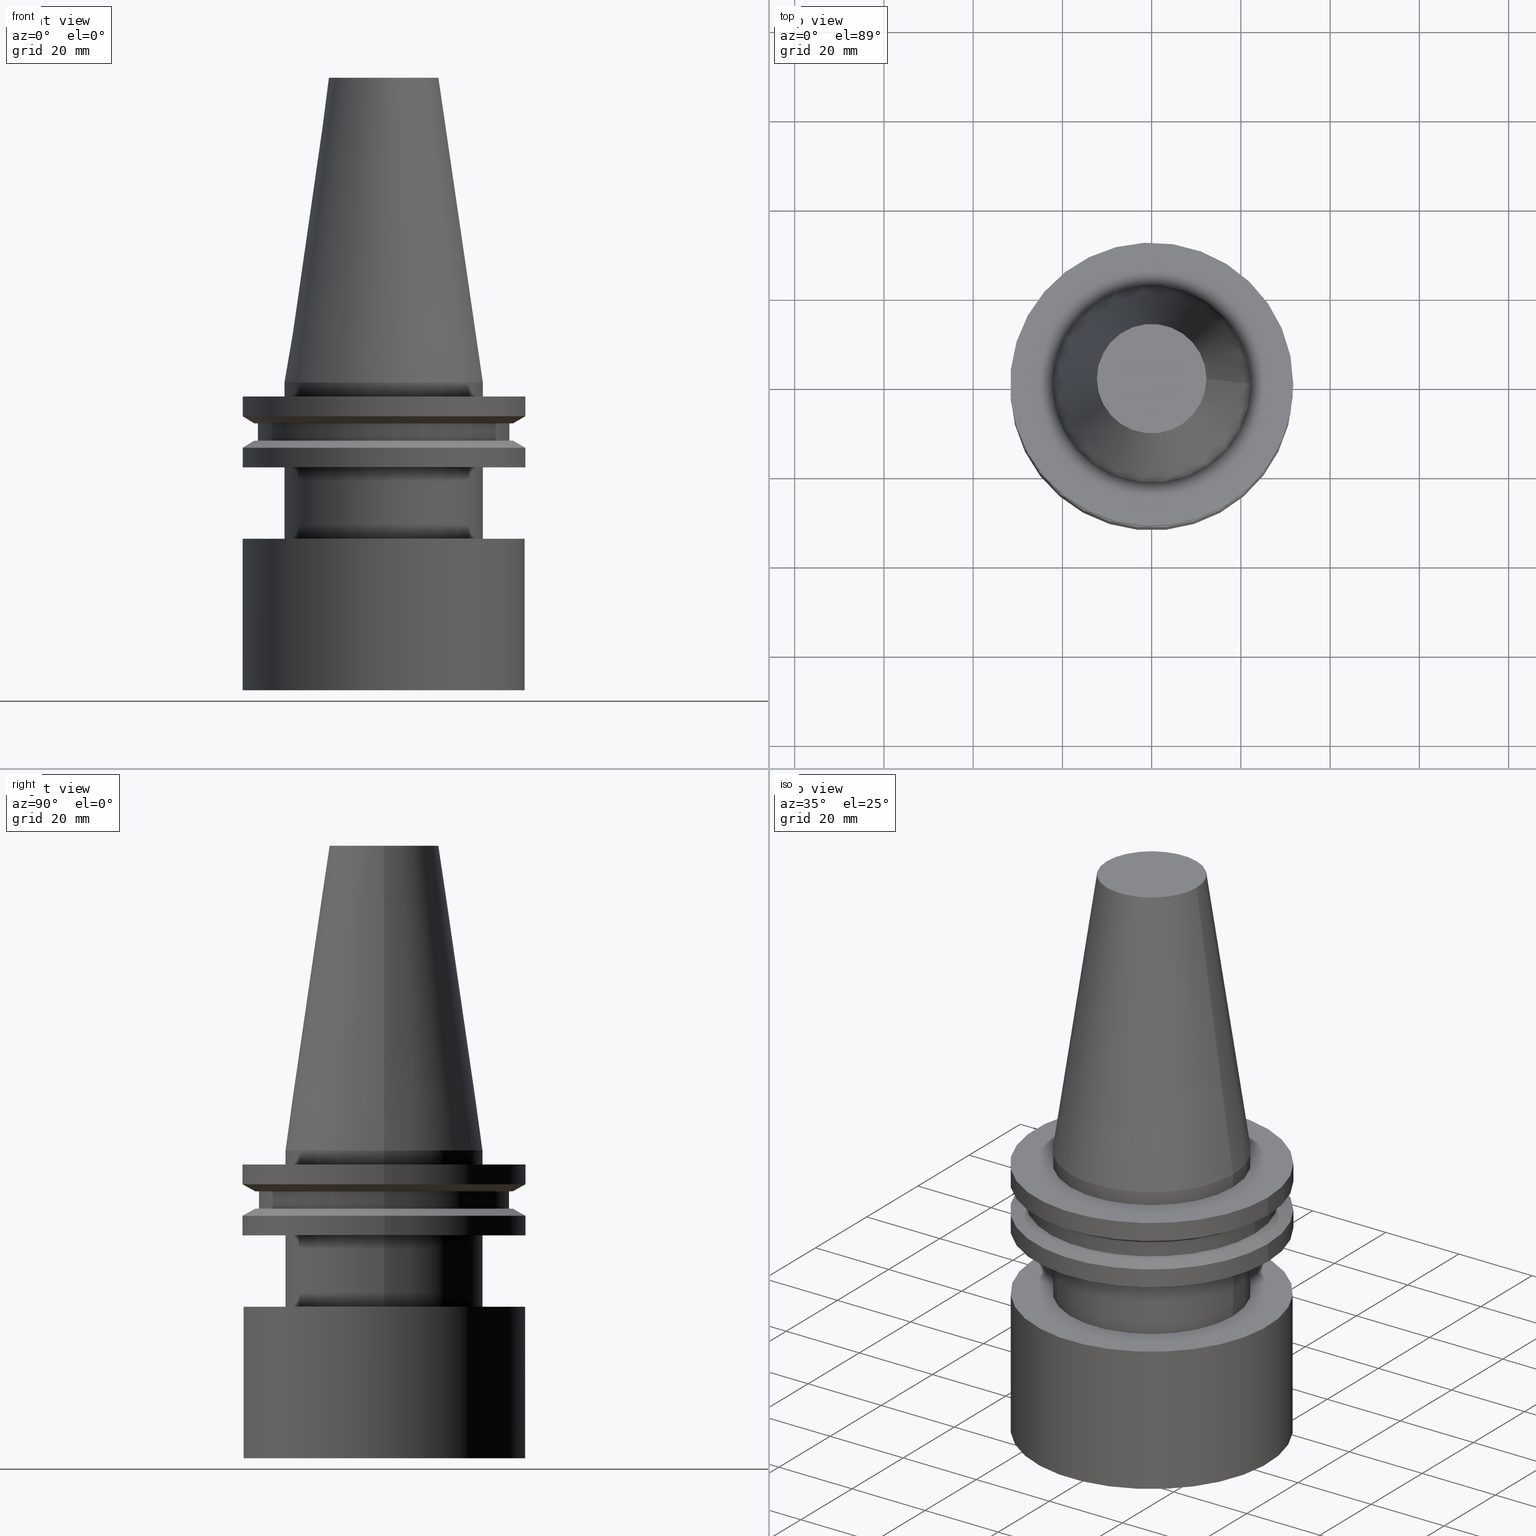
[diagram: canonical four-view strip — front | top / right | iso, engineering-drawing reading convention]
A machine part, canonical four-view strip (front | top / right | iso — engineering-drawing reading convention). The complete STEP part file that produces these views, byte-faithful:
ISO-10303-21;
HEADER;
FILE_DESCRIPTION (( 'STEP AP203' ),
    '1' );
FILE_NAME ('11.368.462N.stp',
    '2022-03-09T15:13:51',
    ( '' ),
    ( '' ),
    'SwSTEP 2.0',
    'SolidWorks 2021',
    '' );
FILE_SCHEMA (( 'CONFIG_CONTROL_DESIGN' ));
ENDSEC;

DATA;
#1 = CARTESIAN_POINT ( 'NONE',  ( 0.000000000000000000, 0.000000000000000000, -3.174999999999997158 ) ) ;
#2 = ORIENTED_EDGE ( 'NONE', *, *, #102, .T. ) ;
#3 = VERTEX_POINT ( 'NONE', #242 ) ;
#4 = ADVANCED_FACE ( 'NONE', ( #222, #254 ), #198, .T. ) ;
#5 = CARTESIAN_POINT ( 'NONE',  ( 0.000000000000000000, 0.000000000000000000, 68.25000000000000000 ) ) ;
#6 = EDGE_LOOP ( 'NONE', ( #2 ) ) ;
#7 = CARTESIAN_POINT ( 'NONE',  ( 31.75000000000000000, 0.000000000000000000, -3.174999999999997158 ) ) ;
#8 = FACE_BOUND ( 'NONE', #93, .T. ) ;
#9 = EDGE_LOOP ( 'NONE', ( #303 ) ) ;
#10 = ADVANCED_BREP_SHAPE_REPRESENTATION ( '11.368.462N', ( #324, #362 ), #279 ) ;
#11 = AXIS2_PLACEMENT_3D ( 'NONE', #392, #210, #360 ) ;
#12 = LOCAL_TIME ( 9, 13, 51.00000000000000000, #344 ) ;
#13 = ORIENTED_EDGE ( 'NONE', *, *, #270, .F. ) ;
#14 = VERTEX_POINT ( 'NONE', #273 ) ;
#15 = ADVANCED_FACE ( 'NONE', ( #256, #55 ), #18, .T. ) ;
#16 = ORIENTED_EDGE ( 'NONE', *, *, #313, .F. ) ;
#17 = VERTEX_POINT ( 'NONE', #250 ) ;
#18 = CYLINDRICAL_SURFACE ( 'NONE', #204, 31.75000000000000000 ) ;
#19 = PERSON_AND_ORGANIZATION_ROLE ( 'creator' ) ;
#20 = DIRECTION ( 'NONE',  ( -0.000000000000000000, -0.000000000000000000, 1.000000000000000000 ) ) ;
#21 = CALENDAR_DATE ( 2022, 9, 3 ) ;
#22 = EDGE_CURVE ( 'NONE', #123, #123, #208, .T. ) ;
#23 = PERSON_AND_ORGANIZATION_ROLE ( 'creator' ) ;
#24 = CALENDAR_DATE ( 2022, 9, 3 ) ;
#25 = AXIS2_PLACEMENT_3D ( 'NONE', #75, #20, #137 ) ;
#26 = CIRCLE ( 'NONE', #35, 31.63500000000000867 ) ;
#27 = LOCAL_TIME ( 9, 13, 51.00000000000000000, #114 ) ;
#28 = PLANE ( 'NONE',  #64 ) ;
#29 = CC_DESIGN_PERSON_AND_ORGANIZATION_ASSIGNMENT ( #281, #53, ( #153 ) ) ;
#30 = DIRECTION ( 'NONE',  ( -1.000000000000000000, 0.000000000000000000, -0.000000000000000000 ) ) ;
#31 = APPLICATION_CONTEXT ( 'configuration controlled 3d designs of mechanical parts and assemblies' ) ;
#32 = DIRECTION ( 'NONE',  ( -0.000000000000000000, -0.000000000000000000, 1.000000000000000000 ) ) ;
#33 = AXIS2_PLACEMENT_3D ( 'NONE', #311, #103, #132 ) ;
#34 = FACE_OUTER_BOUND ( 'NONE', #122, .T. ) ;
#35 = AXIS2_PLACEMENT_3D ( 'NONE', #219, #95, #215 ) ;
#36 = DIRECTION ( 'NONE',  ( -0.000000000000000000, -0.000000000000000000, 1.000000000000000000 ) ) ;
#37 = CARTESIAN_POINT ( 'NONE',  ( 0.000000000000000000, 1.540743955509788682E-30, -35.04999999999999005 ) ) ;
#38 = EDGE_LOOP ( 'NONE', ( #13 ) ) ;
#39 = DIRECTION ( 'NONE',  ( 1.000000000000000000, 0.000000000000000000, 0.000000000000000000 ) ) ;
#40 = CIRCLE ( 'NONE', #33, 28.17999999999999972 ) ;
#41 = ORIENTED_EDGE ( 'NONE', *, *, #116, .F. ) ;
#42 = EDGE_CURVE ( 'NONE', #131, #131, #40, .T. ) ;
#43 = DIRECTION ( 'NONE',  ( 1.000000000000000000, 0.000000000000000000, 0.000000000000000000 ) ) ;
#44 = ORIENTED_EDGE ( 'NONE', *, *, #386, .F. ) ;
#45 = CARTESIAN_POINT ( 'NONE',  ( 28.17999999999999972, 0.000000000000000000, -9.204999999999991189 ) ) ;
#46 = FACE_OUTER_BOUND ( 'NONE', #280, .T. ) ;
#47 = EDGE_LOOP ( 'NONE', ( #74 ) ) ;
#48 = FACE_OUTER_BOUND ( 'NONE', #6, .T. ) ;
#49 = CARTESIAN_POINT ( 'NONE',  ( 28.97919780457007732, 0.000000000000000000, -9.205000000000005400 ) ) ;
#50 = AXIS2_PLACEMENT_3D ( 'NONE', #382, #293, #232 ) ;
#51 = DATE_TIME_ROLE ( 'creation_date' ) ;
#52 =( NAMED_UNIT ( * ) SI_UNIT ( $, .STERADIAN. ) SOLID_ANGLE_UNIT ( ) );
#53 = PERSON_AND_ORGANIZATION_ROLE ( 'classification_officer' ) ;
#54 = PRODUCT_DEFINITION_SHAPE ( 'NONE', 'NONE',  #145 ) ;
#55 = FACE_OUTER_BOUND ( 'NONE', #9, .T. ) ;
#56 = VERTEX_POINT ( 'NONE', #138 ) ;
#57 = CC_DESIGN_PERSON_AND_ORGANIZATION_ASSIGNMENT ( #257, #19, ( #163 ) ) ;
#58 = COORDINATED_UNIVERSAL_TIME_OFFSET ( 6, 0, .BEHIND. ) ;
#59 = AXIS2_PLACEMENT_3D ( 'NONE', #206, #107, #265 ) ;
#60 = DIRECTION ( 'NONE',  ( 1.000000000000000000, 0.000000000000000000, 0.000000000000000000 ) ) ;
#61 = FACE_BOUND ( 'NONE', #328, .T. ) ;
#62 = CALENDAR_DATE ( 2022, 9, 3 ) ;
#63 = EDGE_CURVE ( 'NONE', #185, #185, #136, .T. ) ;
#64 = AXIS2_PLACEMENT_3D ( 'NONE', #88, #111, #233 ) ;
#65 = FACE_OUTER_BOUND ( 'NONE', #38, .T. ) ;
#66 = EDGE_LOOP ( 'NONE', ( #364 ) ) ;
#67 = ORIENTED_EDGE ( 'NONE', *, *, #42, .T. ) ;
#68 = CARTESIAN_POINT ( 'NONE',  ( 28.97919780457008088, 0.000000000000000000, -13.05499999999999794 ) ) ;
#69 = DIRECTION ( 'NONE',  ( 1.000000000000000000, 0.000000000000000000, 0.000000000000000000 ) ) ;
#70 = ORIENTED_EDGE ( 'NONE', *, *, #202, .F. ) ;
#71 = CARTESIAN_POINT ( 'NONE',  ( 0.000000000000000000, 1.127050637003671691E-30, -35.04999999999999005 ) ) ;
#72 = ORIENTED_EDGE ( 'NONE', *, *, #116, .T. ) ;
#73 = FACE_OUTER_BOUND ( 'NONE', #214, .T. ) ;
#74 = ORIENTED_EDGE ( 'NONE', *, *, #202, .T. ) ;
#75 = CARTESIAN_POINT ( 'NONE',  ( 0.000000000000000000, 0.000000000000000000, -3.174999999999997158 ) ) ;
#76 = AXIS2_PLACEMENT_3D ( 'NONE', #213, #183, #43 ) ;
#77 = CC_DESIGN_PERSON_AND_ORGANIZATION_ASSIGNMENT ( #282, #23, ( #145 ) ) ;
#78 = COORDINATED_UNIVERSAL_TIME_OFFSET ( 6, 0, .BEHIND. ) ;
#79 = CIRCLE ( 'NONE', #245, 28.97919780457008088 ) ;
#80 = PERSON ( 'UNSPECIFIED', 'UNSPECIFIED', 'UNSPECIFIED', ('UNSPECIFIED'), ('UNSPECIFIED'), ('UNSPECIFIED') ) ;
#81 = CARTESIAN_POINT ( 'NONE',  ( 12.27178102086201150, 0.000000000000000000, 68.25000000000000000 ) ) ;
#82 = CC_DESIGN_PERSON_AND_ORGANIZATION_ASSIGNMENT ( #251, #253, ( #163 ) ) ;
#83 = FACE_OUTER_BOUND ( 'NONE', #125, .T. ) ;
#84 = AXIS2_PLACEMENT_3D ( 'NONE', #263, #36, #60 ) ;
#85 = CARTESIAN_POINT ( 'NONE',  ( 0.000000000000000000, 0.000000000000000000, -14.65472339340266572 ) ) ;
#86 = CYLINDRICAL_SURFACE ( 'NONE', #229, 22.22500000000000142 ) ;
#87 = APPROVAL_DATE_TIME ( #109, #170 ) ;
#88 = CARTESIAN_POINT ( 'NONE',  ( 0.000000000000000000, 12.27178102086201150, 68.25000000000000000 ) ) ;
#89 = AXIS2_PLACEMENT_3D ( 'NONE', #178, #241, #304 ) ;
#90 = FACE_OUTER_BOUND ( 'NONE', #184, .T. ) ;
#91 = EDGE_CURVE ( 'NONE', #365, #365, #353, .T. ) ;
#92 = CARTESIAN_POINT ( 'NONE',  ( 0.000000000000000000, 0.000000000000000000, -19.04999999999999716 ) ) ;
#93 = EDGE_LOOP ( 'NONE', ( #151 ) ) ;
#94 = VERTEX_POINT ( 'NONE', #369 ) ;
#95 = DIRECTION ( 'NONE',  ( -0.000000000000000000, -2.669333229363891004E-16, -1.000000000000000000 ) ) ;
#96 = DIRECTION ( 'NONE',  ( -0.000000000000000000, -0.000000000000000000, 1.000000000000000000 ) ) ;
#97 = EDGE_LOOP ( 'NONE', ( #307 ) ) ;
#98 = DIRECTION ( 'NONE',  ( 0.000000000000000000, -1.000000000000000000, 2.669333229363891004E-16 ) ) ;
#99 = EDGE_LOOP ( 'NONE', ( #368 ) ) ;
#100 = CC_DESIGN_DATE_AND_TIME_ASSIGNMENT ( #361, #264, ( #153 ) ) ;
#101 = VERTEX_POINT ( 'NONE', #81 ) ;
#102 = EDGE_CURVE ( 'NONE', #94, #94, #175, .T. ) ;
#103 = DIRECTION ( 'NONE',  ( -0.000000000000000000, -0.000000000000000000, 1.000000000000000000 ) ) ;
#104 = PRODUCT ( '11.368.462N', '11.368.462N', '', ( #133 ) ) ;
#105 = APPLICATION_PROTOCOL_DEFINITION ( 'international standard', 'config_control_design', 1994, #187 ) ;
#106 = CARTESIAN_POINT ( 'NONE',  ( 0.000000000000000000, 31.63500000000000512, -69.00000000000000000 ) ) ;
#107 = DIRECTION ( 'NONE',  ( -0.000000000000000000, -0.000000000000000000, 1.000000000000000000 ) ) ;
#108 = DIRECTION ( 'NONE',  ( 1.000000000000000000, 0.000000000000000000, 0.000000000000000000 ) ) ;
#109 = DATE_AND_TIME ( #62, #27 ) ;
#110 = AXIS2_PLACEMENT_3D ( 'NONE', #146, #262, #291 ) ;
#111 = DIRECTION ( 'NONE',  ( 0.000000000000000000, 0.000000000000000000, -1.000000000000000000 ) ) ;
#112 = CC_DESIGN_PERSON_AND_ORGANIZATION_ASSIGNMENT ( #166, #288, ( #104 ) ) ;
#113 = PLANE ( 'NONE',  #390 ) ;
#114 = COORDINATED_UNIVERSAL_TIME_OFFSET ( 6, 0, .BEHIND. ) ;
#115 = DIRECTION ( 'NONE',  ( -0.000000000000000000, -0.000000000000000000, 1.000000000000000000 ) ) ;
#116 = EDGE_CURVE ( 'NONE', #278, #278, #79, .T. ) ;
#117 = AXIS2_PLACEMENT_3D ( 'NONE', #5, #96, #39 ) ;
#118 = DIRECTION ( 'NONE',  ( 0.000000000000000000, -0.000000000000000000, 1.000000000000000000 ) ) ;
#119 = CC_DESIGN_APPROVAL ( #231, ( #145 ) ) ;
#120 = ORIENTED_EDGE ( 'NONE', *, *, #300, .F. ) ;
#121 = FACE_OUTER_BOUND ( 'NONE', #277, .T. ) ;
#122 = EDGE_LOOP ( 'NONE', ( #161 ) ) ;
#123 = VERTEX_POINT ( 'NONE', #7 ) ;
#124 = DIRECTION ( 'NONE',  ( 1.000000000000000000, 0.000000000000000000, 0.000000000000000000 ) ) ;
#125 = EDGE_LOOP ( 'NONE', ( #72 ) ) ;
#126 = DIRECTION ( 'NONE',  ( 0.000000000000000000, -0.000000000000000000, 1.000000000000000000 ) ) ;
#127 = ADVANCED_FACE ( 'NONE', ( #294, #83 ), #352, .F. ) ;
#128 = AXIS2_PLACEMENT_3D ( 'NONE', #71, #190, #98 ) ;
#129 = ORIENTED_EDGE ( 'NONE', *, *, #313, .T. ) ;
#130 = EDGE_LOOP ( 'NONE', ( #269 ) ) ;
#131 = VERTEX_POINT ( 'NONE', #191 ) ;
#132 = DIRECTION ( 'NONE',  ( 1.000000000000000000, 0.000000000000000000, 0.000000000000000000 ) ) ;
#133 = MECHANICAL_CONTEXT ( 'NONE', #31, 'mechanical' ) ;
#134 = ADVANCED_FACE ( 'NONE', ( #34, #318 ), #297, .T. ) ;
#135 = DIRECTION ( 'NONE',  ( -0.000000000000000000, -0.000000000000000000, 1.000000000000000000 ) ) ;
#136 = CIRCLE ( 'NONE', #284, 31.75000000000000000 ) ;
#137 = DIRECTION ( 'NONE',  ( 1.000000000000000000, 0.000000000000000000, 0.000000000000000000 ) ) ;
#138 = CARTESIAN_POINT ( 'NONE',  ( 31.74999999999999289, 0.000000000000000000, -19.04999999999999716 ) ) ;
#139 = DATE_AND_TIME ( #24, #348 ) ;
#140 = CLOSED_SHELL ( 'NONE', ( #4, #186, #343, #355, #15, #192, #127, #252, #326, #134, #235, #227, #157, #295, #260, #336 ) ) ;
#141 = CIRCLE ( 'NONE', #223, 31.74999999999999289 ) ;
#142 = CARTESIAN_POINT ( 'NONE',  ( 0.000000000000000000, 0.000000000000000000, -14.65472339340266572 ) ) ;
#143 = DIRECTION ( 'NONE',  ( -1.000000000000000000, 0.000000000000000000, -0.000000000000000000 ) ) ;
#144 = CALENDAR_DATE ( 2022, 9, 3 ) ;
#145 = PRODUCT_DEFINITION ( 'UNKNOWN', '', #163, #289 ) ;
#146 = CARTESIAN_POINT ( 'NONE',  ( 0.000000000000000000, 0.000000000000000000, -9.205000000000005400 ) ) ;
#147 = CIRCLE ( 'NONE', #258, 22.22500000000000142 ) ;
#148 = ORGANIZATION ( 'UNSPECIFIED', 'UNSPECIFIED', '' ) ;
#149 = FACE_OUTER_BOUND ( 'NONE', #301, .T. ) ;
#150 = FACE_BOUND ( 'NONE', #66, .T. ) ;
#151 = ORIENTED_EDGE ( 'NONE', *, *, #102, .F. ) ;
#152 = DIRECTION ( 'NONE',  ( 1.000000000000000000, 0.000000000000000000, 0.000000000000000000 ) ) ;
#153 = SECURITY_CLASSIFICATION ( '', '', #319 ) ;
#154 = PLANE ( 'NONE',  #172 ) ;
#155 = ORIENTED_EDGE ( 'NONE', *, *, #42, .F. ) ;
#156 = CARTESIAN_POINT ( 'NONE',  ( 22.22500000000000142, 0.000000000000000000, -19.04999999999999716 ) ) ;
#157 = ADVANCED_FACE ( 'NONE', ( #174, #261 ), #86, .T. ) ;
#158 = DIRECTION ( 'NONE',  ( 0.000000000000000000, 1.000000000000000000, -4.386846153884764444E-16 ) ) ;
#159 = ORIENTED_EDGE ( 'NONE', *, *, #200, .T. ) ;
#160 = AXIS2_PLACEMENT_3D ( 'NONE', #142, #384, #323 ) ;
#161 = ORIENTED_EDGE ( 'NONE', *, *, #63, .F. ) ;
#162 = VERTEX_POINT ( 'NONE', #156 ) ;
#163 = PRODUCT_DEFINITION_FORMATION_WITH_SPECIFIED_SOURCE ( 'ANY', '', #104, .NOT_KNOWN. ) ;
#164 = PRODUCT_RELATED_PRODUCT_CATEGORY ( 'detail', '', ( #104 ) ) ;
#165 = APPROVAL_DATE_TIME ( #196, #380 ) ;
#166 = PERSON_AND_ORGANIZATION ( #80, #148 ) ;
#167 = AXIS2_PLACEMENT_3D ( 'NONE', #296, #177, #143 ) ;
#168 = CIRCLE ( 'NONE', #59, 28.97919780457007732 ) ;
#169 = COORDINATED_UNIVERSAL_TIME_OFFSET ( 6, 0, .BEHIND. ) ;
#170 = APPROVAL ( #203, 'UNSPECIFIED' ) ;
#171 = DIRECTION ( 'NONE',  ( 1.000000000000000000, 0.000000000000000000, 0.000000000000000000 ) ) ;
#172 = AXIS2_PLACEMENT_3D ( 'NONE', #274, #126, #124 ) ;
#173 = APPROVAL_PERSON_ORGANIZATION ( #314, #380, #315 ) ;
#174 = FACE_OUTER_BOUND ( 'NONE', #305, .T. ) ;
#175 = CIRCLE ( 'NONE', #347, 22.22499999999999787 ) ;
#176 = AXIS2_PLACEMENT_3D ( 'NONE', #246, #337, #308 ) ;
#177 = DIRECTION ( 'NONE',  ( 0.000000000000000000, 0.000000000000000000, -1.000000000000000000 ) ) ;
#178 = CARTESIAN_POINT ( 'NONE',  ( 0.000000000000000000, 0.000000000000000000, 68.25000000000000000 ) ) ;
#179 = ORIENTED_EDGE ( 'NONE', *, *, #63, .T. ) ;
#180 = FACE_OUTER_BOUND ( 'NONE', #130, .T. ) ;
#181 = ORIENTED_EDGE ( 'NONE', *, *, #300, .T. ) ;
#182 = AXIS2_PLACEMENT_3D ( 'NONE', #85, #205, #357 ) ;
#183 = DIRECTION ( 'NONE',  ( -0.000000000000000000, -0.000000000000000000, 1.000000000000000000 ) ) ;
#184 = EDGE_LOOP ( 'NONE', ( #44 ) ) ;
#185 = VERTEX_POINT ( 'NONE', #218 ) ;
#186 = ADVANCED_FACE ( 'NONE', ( #350 ), #28, .F. ) ;
#187 = APPLICATION_CONTEXT ( 'configuration controlled 3d designs of mechanical parts and assemblies' ) ;
#188 = CARTESIAN_POINT ( 'NONE',  ( 0.000000000000000000, 0.000000000000000000, 68.25000000000000000 ) ) ;
#189 = ORIENTED_EDGE ( 'NONE', *, *, #91, .T. ) ;
#190 = DIRECTION ( 'NONE',  ( 0.000000000000000000, 2.669333229363891004E-16, 1.000000000000000000 ) ) ;
#191 = CARTESIAN_POINT ( 'NONE',  ( 28.17999999999999972, 0.000000000000000000, -13.05499999999999794 ) ) ;
#192 = ADVANCED_FACE ( 'NONE', ( #61, #149 ), #388, .T. ) ;
#193 = AXIS2_PLACEMENT_3D ( 'NONE', #188, #115, #69 ) ;
#194 = CC_DESIGN_SECURITY_CLASSIFICATION ( #153, ( #163 ) ) ;
#195 = DIRECTION ( 'NONE',  ( -1.000000000000000000, 0.000000000000000000, 0.000000000000000000 ) ) ;
#196 = DATE_AND_TIME ( #21, #12 ) ;
#197 = DIRECTION ( 'NONE',  ( 1.000000000000000000, 0.000000000000000000, 0.000000000000000000 ) ) ;
#198 = CONICAL_SURFACE ( 'NONE', #340, 22.22500000000000142, 0.1448138465474119174 ) ;
#199 = AXIS2_PLACEMENT_3D ( 'NONE', #37, #276, #271 ) ;
#200 = EDGE_CURVE ( 'NONE', #220, #220, #333, .T. ) ;
#201 = PERSON_AND_ORGANIZATION ( #80, #148 ) ;
#202 = EDGE_CURVE ( 'NONE', #332, #332, #168, .T. ) ;
#203 = APPROVAL_STATUS ( 'not_yet_approved' ) ;
#204 = AXIS2_PLACEMENT_3D ( 'NONE', #375, #135, #197 ) ;
#205 = DIRECTION ( 'NONE',  ( -0.000000000000000000, -0.000000000000000000, 1.000000000000000000 ) ) ;
#206 = CARTESIAN_POINT ( 'NONE',  ( 0.000000000000000000, 0.000000000000000000, -9.205000000000005400 ) ) ;
#207 = CARTESIAN_POINT ( 'NONE',  ( 0.000000000000000000, 31.75000000000000000, -3.174999999999999378 ) ) ;
#208 = CIRCLE ( 'NONE', #25, 31.75000000000000000 ) ;
#209 = APPROVAL_PERSON_ORGANIZATION ( #201, #231, #226 ) ;
#210 = DIRECTION ( 'NONE',  ( -0.000000000000000000, -0.000000000000000000, 1.000000000000000000 ) ) ;
#211 = PERSON_AND_ORGANIZATION ( #80, #148 ) ;
#212 = EDGE_LOOP ( 'NONE', ( #70 ) ) ;
#213 = CARTESIAN_POINT ( 'NONE',  ( 0.000000000000000000, 0.000000000000000000, 0.000000000000000000 ) ) ;
#214 = EDGE_LOOP ( 'NONE', ( #373 ) ) ;
#215 = DIRECTION ( 'NONE',  ( 0.000000000000000000, 1.000000000000000000, -4.386846153884764444E-16 ) ) ;
#216 = EDGE_CURVE ( 'NONE', #162, #162, #259, .T. ) ;
#217 = ORIENTED_EDGE ( 'NONE', *, *, #22, .T. ) ;
#218 = CARTESIAN_POINT ( 'NONE',  ( 31.75000000000000000, 0.000000000000000000, -7.605276606597335842 ) ) ;
#219 = CARTESIAN_POINT ( 'NONE',  ( 0.000000000000000000, -9.062386313690410430E-15, -68.99999999999998579 ) ) ;
#220 = VERTEX_POINT ( 'NONE', #45 ) ;
#221 = PLANE ( 'NONE',  #176 ) ;
#222 = FACE_BOUND ( 'NONE', #387, .T. ) ;
#223 = AXIS2_PLACEMENT_3D ( 'NONE', #92, #376, #285 ) ;
#224 = DIRECTION ( 'NONE',  ( 0.000000000000000000, 0.000000000000000000, 1.000000000000000000 ) ) ;
#225 = CARTESIAN_POINT ( 'NONE',  ( 0.000000000000000000, 0.000000000000000000, -7.605276606597335842 ) ) ;
#226 = APPROVAL_ROLE ( '' ) ;
#227 = ADVANCED_FACE ( 'NONE', ( #354, #391 ), #113, .F. ) ;
#228 = DIRECTION ( 'NONE',  ( 0.000000000000000000, 0.000000000000000000, -1.000000000000000000 ) ) ;
#229 = AXIS2_PLACEMENT_3D ( 'NONE', #230, #32, #298 ) ;
#230 = CARTESIAN_POINT ( 'NONE',  ( 0.000000000000000000, 0.000000000000000000, 68.25000000000000000 ) ) ;
#231 = APPROVAL ( #378, 'UNSPECIFIED' ) ;
#232 = DIRECTION ( 'NONE',  ( 1.000000000000000000, 0.000000000000000000, 0.000000000000000000 ) ) ;
#233 = DIRECTION ( 'NONE',  ( -1.000000000000000000, 0.000000000000000000, -0.000000000000000000 ) ) ;
#234 = CARTESIAN_POINT ( 'NONE',  ( 0.000000000000000000, 0.000000000000000000, -13.05499999999999794 ) ) ;
#235 = ADVANCED_FACE ( 'NONE', ( #327, #306 ), #334, .T. ) ;
#236 = CYLINDRICAL_SURFACE ( 'NONE', #11, 22.22500000000000142 ) ;
#237 = CIRCLE ( 'NONE', #193, 12.27178102086201150 ) ;
#238 = APPROVAL_PERSON_ORGANIZATION ( #211, #170, #358 ) ;
#239 = FACE_BOUND ( 'NONE', #316, .T. ) ;
#240 = EDGE_LOOP ( 'NONE', ( #181 ) ) ;
#241 = DIRECTION ( 'NONE',  ( -0.000000000000000000, -0.000000000000000000, 1.000000000000000000 ) ) ;
#242 = CARTESIAN_POINT ( 'NONE',  ( 0.000000000000000000, 31.63500000000000512, -35.04999999999999716 ) ) ;
#243 = FACE_OUTER_BOUND ( 'NONE', #97, .T. ) ;
#244 = EDGE_LOOP ( 'NONE', ( #217 ) ) ;
#245 = AXIS2_PLACEMENT_3D ( 'NONE', #234, #389, #321 ) ;
#246 = CARTESIAN_POINT ( 'NONE',  ( 0.000000000000000000, 31.63500000000000512, -69.00000000000000000 ) ) ;
#247 = LOCAL_TIME ( 9, 13, 51.00000000000000000, #78 ) ;
#248 = ORIENTED_EDGE ( 'NONE', *, *, #270, .T. ) ;
#249 = EDGE_LOOP ( 'NONE', ( #275 ) ) ;
#250 = CARTESIAN_POINT ( 'NONE',  ( 22.22500000000000142, 0.000000000000000000, 0.000000000000000000 ) ) ;
#251 = PERSON_AND_ORGANIZATION ( #80, #148 ) ;
#252 = ADVANCED_FACE ( 'NONE', ( #180, #121 ), #329, .T. ) ;
#253 = PERSON_AND_ORGANIZATION_ROLE ( 'design_supplier' ) ;
#254 = FACE_OUTER_BOUND ( 'NONE', #372, .T. ) ;
#255 = CALENDAR_DATE ( 2022, 9, 3 ) ;
#256 = FACE_OUTER_BOUND ( 'NONE', #356, .T. ) ;
#257 = PERSON_AND_ORGANIZATION ( #80, #148 ) ;
#258 = AXIS2_PLACEMENT_3D ( 'NONE', #1, #267, #152 ) ;
#259 = CIRCLE ( 'NONE', #50, 22.22500000000000142 ) ;
#260 = ADVANCED_FACE ( 'NONE', ( #46, #367 ), #302, .T. ) ;
#261 = FACE_OUTER_BOUND ( 'NONE', #335, .T. ) ;
#262 = DIRECTION ( 'NONE',  ( -0.000000000000000000, -0.000000000000000000, 1.000000000000000000 ) ) ;
#263 = CARTESIAN_POINT ( 'NONE',  ( 0.000000000000000000, 0.000000000000000000, -9.204999999999991189 ) ) ;
#264 = DATE_TIME_ROLE ( 'classification_date' ) ;
#265 = DIRECTION ( 'NONE',  ( 1.000000000000000000, 0.000000000000000000, 0.000000000000000000 ) ) ;
#266 = EDGE_CURVE ( 'NONE', #14, #14, #147, .T. ) ;
#267 = DIRECTION ( 'NONE',  ( -0.000000000000000000, -0.000000000000000000, 1.000000000000000000 ) ) ;
#268 = PLANE ( 'NONE',  #310 ) ;
#269 = ORIENTED_EDGE ( 'NONE', *, *, #200, .F. ) ;
#270 = EDGE_CURVE ( 'NONE', #3, #3, #370, .T. ) ;
#271 = DIRECTION ( 'NONE',  ( 0.000000000000000000, 1.000000000000000000, -2.193423076942382468E-16 ) ) ;
#272 = ORIENTED_EDGE ( 'NONE', *, *, #266, .T. ) ;
#273 = CARTESIAN_POINT ( 'NONE',  ( 22.22500000000000142, 0.000000000000000000, -3.174999999999997158 ) ) ;
#274 = CARTESIAN_POINT ( 'NONE',  ( 0.000000000000000000, 28.97919780457007732, -9.204999999999996518 ) ) ;
#275 = ORIENTED_EDGE ( 'NONE', *, *, #283, .F. ) ;
#276 = DIRECTION ( 'NONE',  ( -0.000000000000000000, -2.669333229363891004E-16, -1.000000000000000000 ) ) ;
#277 = EDGE_LOOP ( 'NONE', ( #67 ) ) ;
#278 = VERTEX_POINT ( 'NONE', #68 ) ;
#279 =( GEOMETRIC_REPRESENTATION_CONTEXT ( 3 ) GLOBAL_UNCERTAINTY_ASSIGNED_CONTEXT ( ( #374 ) ) GLOBAL_UNIT_ASSIGNED_CONTEXT ( ( #377, #345, #52 ) ) REPRESENTATION_CONTEXT ( 'NONE', 'WORKASPACE' ) );
#280 = EDGE_LOOP ( 'NONE', ( #248 ) ) ;
#281 = PERSON_AND_ORGANIZATION ( #80, #148 ) ;
#282 = PERSON_AND_ORGANIZATION ( #80, #148 ) ;
#283 = EDGE_CURVE ( 'NONE', #383, #383, #26, .T. ) ;
#284 = AXIS2_PLACEMENT_3D ( 'NONE', #225, #346, #108 ) ;
#285 = DIRECTION ( 'NONE',  ( 1.000000000000000000, 0.000000000000000000, 0.000000000000000000 ) ) ;
#286 = CARTESIAN_POINT ( 'NONE',  ( 0.000000000000000000, 0.000000000000000000, 0.000000000000000000 ) ) ;
#287 = ORIENTED_EDGE ( 'NONE', *, *, #91, .F. ) ;
#288 = PERSON_AND_ORGANIZATION_ROLE ( 'design_owner' ) ;
#289 = DESIGN_CONTEXT ( 'detailed design', #187, 'design' ) ;
#290 = CARTESIAN_POINT ( 'NONE',  ( 0.000000000000000000, 0.000000000000000000, 0.000000000000000000 ) ) ;
#291 = DIRECTION ( 'NONE',  ( 1.000000000000000000, 0.000000000000000000, 0.000000000000000000 ) ) ;
#292 = LOCAL_TIME ( 9, 13, 51.00000000000000000, #169 ) ;
#293 = DIRECTION ( 'NONE',  ( -0.000000000000000000, -0.000000000000000000, 1.000000000000000000 ) ) ;
#294 = FACE_BOUND ( 'NONE', #330, .T. ) ;
#295 = ADVANCED_FACE ( 'NONE', ( #8, #65 ), #331, .T. ) ;
#296 = CARTESIAN_POINT ( 'NONE',  ( 0.000000000000000000, 28.17999999999999972, -13.05499999999999794 ) ) ;
#297 = CONICAL_SURFACE ( 'NONE', #110, 28.97919780457007732, 1.047197551196598297 ) ;
#298 = DIRECTION ( 'NONE',  ( 1.000000000000000000, 0.000000000000000000, 0.000000000000000000 ) ) ;
#299 = FACE_OUTER_BOUND ( 'NONE', #212, .T. ) ;
#300 = EDGE_CURVE ( 'NONE', #101, #101, #237, .T. ) ;
#301 = EDGE_LOOP ( 'NONE', ( #189 ) ) ;
#302 = CYLINDRICAL_SURFACE ( 'NONE', #341, 31.63500000000000867 ) ;
#303 = ORIENTED_EDGE ( 'NONE', *, *, #386, .T. ) ;
#304 = DIRECTION ( 'NONE',  ( 1.000000000000000000, 0.000000000000000000, 0.000000000000000000 ) ) ;
#305 = EDGE_LOOP ( 'NONE', ( #16 ) ) ;
#306 = FACE_OUTER_BOUND ( 'NONE', #338, .T. ) ;
#307 = ORIENTED_EDGE ( 'NONE', *, *, #283, .T. ) ;
#308 = DIRECTION ( 'NONE',  ( 0.000000000000000000, 1.000000000000000000, -2.669333229363891004E-16 ) ) ;
#309 = ORIENTED_EDGE ( 'NONE', *, *, #22, .F. ) ;
#310 = AXIS2_PLACEMENT_3D ( 'NONE', #393, #118, #363 ) ;
#311 = CARTESIAN_POINT ( 'NONE',  ( 0.000000000000000000, 0.000000000000000000, -13.05499999999999794 ) ) ;
#312 = DIRECTION ( 'NONE',  ( 1.000000000000000000, 0.000000000000000000, 0.000000000000000000 ) ) ;
#313 = EDGE_CURVE ( 'NONE', #17, #17, #381, .T. ) ;
#314 = PERSON_AND_ORGANIZATION ( #80, #148 ) ;
#315 = APPROVAL_ROLE ( '' ) ;
#316 = EDGE_LOOP ( 'NONE', ( #159 ) ) ;
#317 = DATE_AND_TIME ( #255, #247 ) ;
#318 = FACE_BOUND ( 'NONE', #47, .T. ) ;
#319 = SECURITY_CLASSIFICATION_LEVEL ( 'unclassified' ) ;
#320 = CARTESIAN_POINT ( 'NONE',  ( 0.000000000000000000, 0.000000000000000000, -35.04999999999999716 ) ) ;
#321 = DIRECTION ( 'NONE',  ( 1.000000000000000000, 0.000000000000000000, 0.000000000000000000 ) ) ;
#322 = CC_DESIGN_DATE_AND_TIME_ASSIGNMENT ( #139, #51, ( #145 ) ) ;
#323 = DIRECTION ( 'NONE',  ( -1.000000000000000000, 0.000000000000000000, 0.000000000000000000 ) ) ;
#324 = MANIFOLD_SOLID_BREP ( 'CKB', #140 ) ;
#325 = DIRECTION ( 'NONE',  ( 0.000000000000000000, 0.000000000000000000, -1.000000000000000000 ) ) ;
#326 = ADVANCED_FACE ( 'NONE', ( #299, #239 ), #154, .F. ) ;
#327 = FACE_OUTER_BOUND ( 'NONE', #394, .T. ) ;
#328 = EDGE_LOOP ( 'NONE', ( #41 ) ) ;
#329 = CYLINDRICAL_SURFACE ( 'NONE', #89, 28.17999999999999972 ) ;
#330 = EDGE_LOOP ( 'NONE', ( #155 ) ) ;
#331 = PLANE ( 'NONE',  #128 ) ;
#332 = VERTEX_POINT ( 'NONE', #49 ) ;
#333 = CIRCLE ( 'NONE', #84, 28.17999999999999972 ) ;
#334 = CYLINDRICAL_SURFACE ( 'NONE', #117, 31.75000000000000000 ) ;
#335 = EDGE_LOOP ( 'NONE', ( #272 ) ) ;
#336 = ADVANCED_FACE ( 'NONE', ( #243 ), #221, .T. ) ;
#337 = DIRECTION ( 'NONE',  ( 0.000000000000000000, -2.669333229363891004E-16, -1.000000000000000000 ) ) ;
#338 = EDGE_LOOP ( 'NONE', ( #179 ) ) ;
#339 = CARTESIAN_POINT ( 'NONE',  ( 31.75000000000000000, 0.000000000000000000, -14.65472339340266572 ) ) ;
#340 = AXIS2_PLACEMENT_3D ( 'NONE', #286, #228, #195 ) ;
#341 = AXIS2_PLACEMENT_3D ( 'NONE', #366, #371, #158 ) ;
#342 = CC_DESIGN_APPROVAL ( #170, ( #153 ) ) ;
#343 = ADVANCED_FACE ( 'NONE', ( #73, #48 ), #236, .T. ) ;
#344 = COORDINATED_UNIVERSAL_TIME_OFFSET ( 6, 0, .BEHIND. ) ;
#345 =( NAMED_UNIT ( * ) PLANE_ANGLE_UNIT ( ) SI_UNIT ( $, .RADIAN. ) );
#346 = DIRECTION ( 'NONE',  ( -0.000000000000000000, -0.000000000000000000, 1.000000000000000000 ) ) ;
#347 = AXIS2_PLACEMENT_3D ( 'NONE', #320, #359, #171 ) ;
#348 = LOCAL_TIME ( 9, 13, 51.00000000000000000, #58 ) ;
#349 = APPROVAL_STATUS ( 'not_yet_approved' ) ;
#350 = FACE_OUTER_BOUND ( 'NONE', #240, .T. ) ;
#351 = APPROVAL_DATE_TIME ( #317, #231 ) ;
#352 = PLANE ( 'NONE',  #167 ) ;
#353 = CIRCLE ( 'NONE', #182, 31.75000000000000000 ) ;
#354 = FACE_BOUND ( 'NONE', #99, .T. ) ;
#355 = ADVANCED_FACE ( 'NONE', ( #90, #150 ), #268, .F. ) ;
#356 = EDGE_LOOP ( 'NONE', ( #287 ) ) ;
#357 = DIRECTION ( 'NONE',  ( 1.000000000000000000, 0.000000000000000000, 0.000000000000000000 ) ) ;
#358 = APPROVAL_ROLE ( '' ) ;
#359 = DIRECTION ( 'NONE',  ( -0.000000000000000000, -0.000000000000000000, 1.000000000000000000 ) ) ;
#360 = DIRECTION ( 'NONE',  ( 1.000000000000000000, 0.000000000000000000, 0.000000000000000000 ) ) ;
#361 = DATE_AND_TIME ( #144, #292 ) ;
#362 = AXIS2_PLACEMENT_3D ( 'NONE', #290, #224, #312 ) ;
#363 = DIRECTION ( 'NONE',  ( 1.000000000000000000, 0.000000000000000000, 0.000000000000000000 ) ) ;
#364 = ORIENTED_EDGE ( 'NONE', *, *, #216, .T. ) ;
#365 = VERTEX_POINT ( 'NONE', #339 ) ;
#366 = CARTESIAN_POINT ( 'NONE',  ( 0.000000000000000000, -9.062386313690412007E-15, -69.00000000000000000 ) ) ;
#367 = FACE_OUTER_BOUND ( 'NONE', #249, .T. ) ;
#368 = ORIENTED_EDGE ( 'NONE', *, *, #266, .F. ) ;
#369 = CARTESIAN_POINT ( 'NONE',  ( 22.22499999999999787, 0.000000000000000000, -35.04999999999999716 ) ) ;
#370 = CIRCLE ( 'NONE', #199, 31.63500000000000512 ) ;
#371 = DIRECTION ( 'NONE',  ( -0.000000000000000000, -2.669333229363891004E-16, -1.000000000000000000 ) ) ;
#372 = EDGE_LOOP ( 'NONE', ( #129 ) ) ;
#373 = ORIENTED_EDGE ( 'NONE', *, *, #216, .F. ) ;
#374 = UNCERTAINTY_MEASURE_WITH_UNIT (LENGTH_MEASURE( 1.000000000000000082E-05 ), #377, 'distance_accuracy_value', 'NONE');
#375 = CARTESIAN_POINT ( 'NONE',  ( 0.000000000000000000, 0.000000000000000000, 68.25000000000000000 ) ) ;
#376 = DIRECTION ( 'NONE',  ( -0.000000000000000000, -0.000000000000000000, 1.000000000000000000 ) ) ;
#377 =( LENGTH_UNIT ( ) NAMED_UNIT ( * ) SI_UNIT ( .MILLI., .METRE. ) );
#378 = APPROVAL_STATUS ( 'not_yet_approved' ) ;
#379 = APPLICATION_PROTOCOL_DEFINITION ( 'international standard', 'config_control_design', 1994, #31 ) ;
#380 = APPROVAL ( #349, 'UNSPECIFIED' ) ;
#381 = CIRCLE ( 'NONE', #76, 22.22500000000000142 ) ;
#382 = CARTESIAN_POINT ( 'NONE',  ( 0.000000000000000000, 0.000000000000000000, -19.04999999999999716 ) ) ;
#383 = VERTEX_POINT ( 'NONE', #106 ) ;
#384 = DIRECTION ( 'NONE',  ( 0.000000000000000000, 0.000000000000000000, -1.000000000000000000 ) ) ;
#385 = SHAPE_DEFINITION_REPRESENTATION ( #54, #10 ) ;
#386 = EDGE_CURVE ( 'NONE', #56, #56, #141, .T. ) ;
#387 = EDGE_LOOP ( 'NONE', ( #120 ) ) ;
#388 = CONICAL_SURFACE ( 'NONE', #160, 31.75000000000000000, 1.047197551196597853 ) ;
#389 = DIRECTION ( 'NONE',  ( -0.000000000000000000, -0.000000000000000000, 1.000000000000000000 ) ) ;
#390 = AXIS2_PLACEMENT_3D ( 'NONE', #207, #325, #30 ) ;
#391 = FACE_OUTER_BOUND ( 'NONE', #244, .T. ) ;
#392 = CARTESIAN_POINT ( 'NONE',  ( 0.000000000000000000, 0.000000000000000000, 68.25000000000000000 ) ) ;
#393 = CARTESIAN_POINT ( 'NONE',  ( 0.000000000000000000, 31.74999999999999289, -19.04999999999999716 ) ) ;
#394 = EDGE_LOOP ( 'NONE', ( #309 ) ) ;
#395 = CC_DESIGN_APPROVAL ( #380, ( #163 ) ) ;
ENDSEC;
END-ISO-10303-21;
